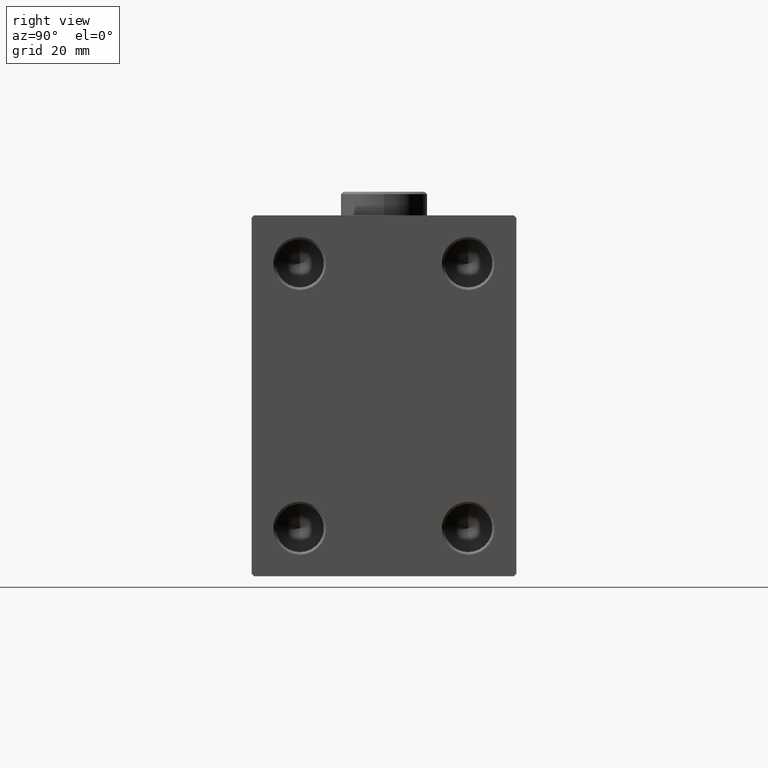
[diagram: clean part render]
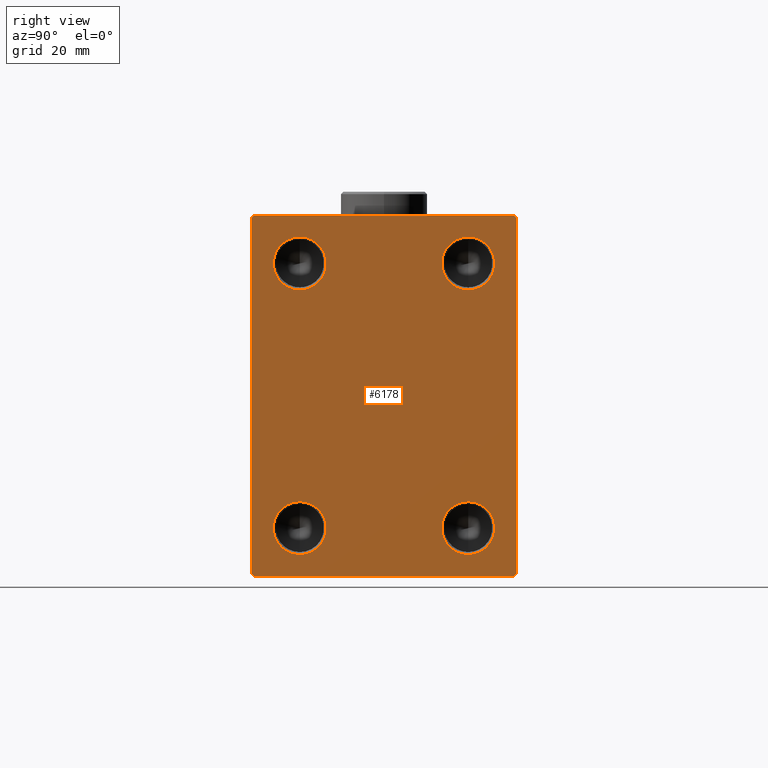
[diagram: same view with one face highlighted and labeled with its STEP entity id]
A machine part, right view. The second image highlights one B-rep face of the part: STEP entity #6178.
In plain terms, the highlighted planar face has unit normal (1, 0, 0).
Its self-contained STEP definition (entity closure, byte-faithful):
#233 = DIRECTION ( 'NONE',  ( 0.000000000000000000, 0.000000000000000000, -1.000000000000000000 ) ) ;
#428 = CARTESIAN_POINT ( 'NONE',  ( 105.0000000000000000, 27.00000000000003197, -37.50000000000000000 ) ) ;
#951 = LINE ( 'NONE', #39427, #1923 ) ;
#1006 = CARTESIAN_POINT ( 'NONE',  ( 105.0000000000000000, -27.49999999999999645, -37.00000000000000000 ) ) ;
#1106 = CARTESIAN_POINT ( 'NONE',  ( 105.0000000000000000, 17.50000000000000000, -33.00000000000000000 ) ) ;
#1469 = AXIS2_PLACEMENT_3D ( 'NONE', #6687, #20769, #233 ) ;
#1743 = DIRECTION ( 'NONE',  ( 1.000000000000000000, 0.000000000000000000, 0.000000000000000000 ) ) ;
#1864 = VECTOR ( 'NONE', #29191, 1000.000000000000114 ) ;
#1923 = VECTOR ( 'NONE', #29295, 1000.000000000000000 ) ;
#2299 = ORIENTED_EDGE ( 'NONE', *, *, #17758, .F. ) ;
#2366 = CIRCLE ( 'NONE', #7549, 5.500000000000007994 ) ;
#2632 = CARTESIAN_POINT ( 'NONE',  ( 105.0000000000000000, 27.50000000000000355, -37.00000000000002842 ) ) ;
#3015 = EDGE_LOOP ( 'NONE', ( #12712, #26159 ) ) ;
#3556 = DIRECTION ( 'NONE',  ( 1.000000000000000000, -0.000000000000000000, -0.000000000000000000 ) ) ;
#4507 = EDGE_CURVE ( 'NONE', #5526, #22441, #30795, .T. ) ;
#4709 = CARTESIAN_POINT ( 'NONE',  ( 105.0000000000000000, 17.50000000000000000, -27.49999999999999645 ) ) ;
#5438 = EDGE_CURVE ( 'NONE', #16872, #19454, #13195, .T. ) ;
#5497 = VERTEX_POINT ( 'NONE', #38989 ) ;
#5526 = VERTEX_POINT ( 'NONE', #29074 ) ;
#5912 = DIRECTION ( 'NONE',  ( 0.000000000000000000, 0.000000000000000000, -1.000000000000000000 ) ) ;
#6178 = ADVANCED_FACE ( 'NONE', ( #22054, #26408, #8211, #43232, #43472 ), #16031, .T. ) ;
#6384 = CARTESIAN_POINT ( 'NONE',  ( 105.0000000000000000, 27.49999999999999645, 37.00000000000001421 ) ) ;
#6560 = CARTESIAN_POINT ( 'NONE',  ( 105.0000000000000000, 17.50000000000000000, 27.50000000000000000 ) ) ;
#6687 = CARTESIAN_POINT ( 'NONE',  ( 105.0000000000000000, -17.50000000000000000, -27.49999999999999645 ) ) ;
#7513 = VERTEX_POINT ( 'NONE', #30819 ) ;
#7544 = CARTESIAN_POINT ( 'NONE',  ( 105.0000000000000000, -17.50000000000000000, -21.99999999999998934 ) ) ;
#7549 = AXIS2_PLACEMENT_3D ( 'NONE', #16990, #41155, #5912 ) ;
#7971 = DIRECTION ( 'NONE',  ( 0.000000000000000000, 1.000000000000000000, 0.000000000000000000 ) ) ;
#8211 = FACE_BOUND ( 'NONE', #14142, .T. ) ;
#8315 = CARTESIAN_POINT ( 'NONE',  ( 105.0000000000000000, -32.24999999999999289, -32.24999999999999289 ) ) ;
#8327 = CARTESIAN_POINT ( 'NONE',  ( 105.0000000000000000, -17.50000000000000000, -33.00000000000000000 ) ) ;
#8840 = CARTESIAN_POINT ( 'NONE',  ( 105.0000000000000000, 27.50000000000000355, -37.50000000000000000 ) ) ;
#8942 = DIRECTION ( 'NONE',  ( 1.000000000000000000, -0.000000000000000000, -0.000000000000000000 ) ) ;
#9758 = VERTEX_POINT ( 'NONE', #6384 ) ;
#9929 = VERTEX_POINT ( 'NONE', #34391 ) ;
#10473 = DIRECTION ( 'NONE',  ( 0.000000000000000000, 0.000000000000000000, -1.000000000000000000 ) ) ;
#10508 = EDGE_CURVE ( 'NONE', #31824, #41839, #25140, .T. ) ;
#11880 = CARTESIAN_POINT ( 'NONE',  ( 105.0000000000000000, 17.50000000000000000, 21.99999999999999289 ) ) ;
#11900 = CARTESIAN_POINT ( 'NONE',  ( 105.0000000000000000, 0.000000000000000000, 0.000000000000000000 ) ) ;
#12030 = CARTESIAN_POINT ( 'NONE',  ( 105.0000000000000000, -17.50000000000000000, 27.50000000000000000 ) ) ;
#12712 = ORIENTED_EDGE ( 'NONE', *, *, #35226, .F. ) ;
#12987 = ORIENTED_EDGE ( 'NONE', *, *, #45395, .T. ) ;
#13195 = LINE ( 'NONE', #41990, #26424 ) ;
#13522 = ORIENTED_EDGE ( 'NONE', *, *, #18465, .F. ) ;
#13895 = DIRECTION ( 'NONE',  ( 1.000000000000000000, -0.000000000000000000, -0.000000000000000000 ) ) ;
#14062 = AXIS2_PLACEMENT_3D ( 'NONE', #6560, #3556, #20644 ) ;
#14142 = EDGE_LOOP ( 'NONE', ( #26367, #14317 ) ) ;
#14317 = ORIENTED_EDGE ( 'NONE', *, *, #40755, .F. ) ;
#14326 = CARTESIAN_POINT ( 'NONE',  ( 105.0000000000000000, 27.49999999999999645, 37.50000000000000000 ) ) ;
#16031 = PLANE ( 'NONE',  #20558 ) ;
#16672 = ORIENTED_EDGE ( 'NONE', *, *, #5438, .T. ) ;
#16872 = VERTEX_POINT ( 'NONE', #428 ) ;
#16990 = CARTESIAN_POINT ( 'NONE',  ( 105.0000000000000000, 17.50000000000000000, 27.50000000000000000 ) ) ;
#17596 = AXIS2_PLACEMENT_3D ( 'NONE', #45045, #31665, #10473 ) ;
#17683 = CIRCLE ( 'NONE', #1469, 5.500000000000005329 ) ;
#17758 = EDGE_CURVE ( 'NONE', #37654, #29569, #39191, .T. ) ;
#18463 = LINE ( 'NONE', #14326, #19287 ) ;
#18465 = EDGE_CURVE ( 'NONE', #37942, #5497, #2366, .T. ) ;
#19287 = VECTOR ( 'NONE', #45425, 1000.000000000000000 ) ;
#19454 = VERTEX_POINT ( 'NONE', #2632 ) ;
#19631 = EDGE_LOOP ( 'NONE', ( #12987, #40179, #25145, #26548, #34836, #16672, #36153, #27584 ) ) ;
#19809 = AXIS2_PLACEMENT_3D ( 'NONE', #12030, #26090, #40133 ) ;
#20337 = ORIENTED_EDGE ( 'NONE', *, *, #25196, .F. ) ;
#20441 = VERTEX_POINT ( 'NONE', #39195 ) ;
#20505 = DIRECTION ( 'NONE',  ( 0.000000000000000000, -0.7071067811865474617, -0.7071067811865474617 ) ) ;
#20558 = AXIS2_PLACEMENT_3D ( 'NONE', #11900, #1743, #25964 ) ;
#20644 = DIRECTION ( 'NONE',  ( 0.000000000000000000, 0.000000000000000000, -1.000000000000000000 ) ) ;
#20769 = DIRECTION ( 'NONE',  ( 1.000000000000000000, -0.000000000000000000, -0.000000000000000000 ) ) ;
#20790 = EDGE_LOOP ( 'NONE', ( #45021, #13522 ) ) ;
#21386 = LINE ( 'NONE', #39540, #24791 ) ;
#21462 = AXIS2_PLACEMENT_3D ( 'NONE', #40508, #8942, #30588 ) ;
#21826 = LINE ( 'NONE', #32634, #1864 ) ;
#22051 = CIRCLE ( 'NONE', #19809, 5.500000000000007994 ) ;
#22054 = FACE_BOUND ( 'NONE', #20790, .T. ) ;
#22441 = VERTEX_POINT ( 'NONE', #31381 ) ;
#22517 = AXIS2_PLACEMENT_3D ( 'NONE', #45458, #13895, #27958 ) ;
#22569 = EDGE_CURVE ( 'NONE', #9929, #31035, #951, .T. ) ;
#22695 = DIRECTION ( 'NONE',  ( 0.000000000000000000, 0.000000000000000000, -1.000000000000000000 ) ) ;
#24029 = DIRECTION ( 'NONE',  ( -0.000000000000000000, 0.7071067811865474617, 0.7071067811865474617 ) ) ;
#24056 = EDGE_LOOP ( 'NONE', ( #20337, #2299 ) ) ;
#24710 = EDGE_CURVE ( 'NONE', #9758, #7513, #21826, .T. ) ;
#24791 = VECTOR ( 'NONE', #7971, 1000.000000000000000 ) ;
#25140 = CIRCLE ( 'NONE', #21462, 5.500000000000005329 ) ;
#25145 = ORIENTED_EDGE ( 'NONE', *, *, #22569, .T. ) ;
#25196 = EDGE_CURVE ( 'NONE', #29569, #37654, #40159, .T. ) ;
#25964 = DIRECTION ( 'NONE',  ( 0.000000000000000000, 0.000000000000000000, -1.000000000000000000 ) ) ;
#26067 = DIRECTION ( 'NONE',  ( -0.000000000000000000, 0.7071067811865474617, -0.7071067811865474617 ) ) ;
#26090 = DIRECTION ( 'NONE',  ( 1.000000000000000000, -0.000000000000000000, -0.000000000000000000 ) ) ;
#26159 = ORIENTED_EDGE ( 'NONE', *, *, #4507, .F. ) ;
#26362 = DIRECTION ( 'NONE',  ( 0.000000000000000000, -9.251858538542971581E-17, 1.000000000000000000 ) ) ;
#26367 = ORIENTED_EDGE ( 'NONE', *, *, #10508, .F. ) ;
#26408 = FACE_BOUND ( 'NONE', #3015, .T. ) ;
#26424 = VECTOR ( 'NONE', #24029, 1000.000000000000114 ) ;
#26548 = ORIENTED_EDGE ( 'NONE', *, *, #39729, .T. ) ;
#27584 = ORIENTED_EDGE ( 'NONE', *, *, #24710, .T. ) ;
#27609 = EDGE_CURVE ( 'NONE', #29366, #16872, #21386, .T. ) ;
#27634 = CARTESIAN_POINT ( 'NONE',  ( 105.0000000000000000, -32.24999999999999289, 32.24999999999999289 ) ) ;
#27958 = DIRECTION ( 'NONE',  ( 0.000000000000000000, 0.000000000000000000, -1.000000000000000000 ) ) ;
#28986 = CARTESIAN_POINT ( 'NONE',  ( 105.0000000000000000, -26.99999999999999645, -37.50000000000000000 ) ) ;
#29074 = CARTESIAN_POINT ( 'NONE',  ( 105.0000000000000000, -17.50000000000000000, 21.99999999999999289 ) ) ;
#29191 = DIRECTION ( 'NONE',  ( -0.000000000000000000, -0.7071067811865474617, 0.7071067811865474617 ) ) ;
#29295 = DIRECTION ( 'NONE',  ( 0.000000000000000000, 0.000000000000000000, -1.000000000000000000 ) ) ;
#29366 = VERTEX_POINT ( 'NONE', #28986 ) ;
#29569 = VERTEX_POINT ( 'NONE', #31929 ) ;
#30588 = DIRECTION ( 'NONE',  ( 0.000000000000000000, 0.000000000000000000, -1.000000000000000000 ) ) ;
#30795 = CIRCLE ( 'NONE', #17596, 5.500000000000007994 ) ;
#30819 = CARTESIAN_POINT ( 'NONE',  ( 105.0000000000000000, 27.00000000000001066, 37.50000000000000000 ) ) ;
#31035 = VERTEX_POINT ( 'NONE', #1006 ) ;
#31381 = CARTESIAN_POINT ( 'NONE',  ( 105.0000000000000000, -17.50000000000000000, 33.00000000000001421 ) ) ;
#31665 = DIRECTION ( 'NONE',  ( 1.000000000000000000, -0.000000000000000000, -0.000000000000000000 ) ) ;
#31824 = VERTEX_POINT ( 'NONE', #7544 ) ;
#31929 = CARTESIAN_POINT ( 'NONE',  ( 105.0000000000000000, 17.50000000000000000, -21.99999999999998934 ) ) ;
#32294 = VECTOR ( 'NONE', #26362, 1000.000000000000000 ) ;
#32634 = CARTESIAN_POINT ( 'NONE',  ( 105.0000000000000000, 32.25000000000000000, 32.25000000000000000 ) ) ;
#33213 = EDGE_CURVE ( 'NONE', #19454, #9758, #43419, .T. ) ;
#33286 = DIRECTION ( 'NONE',  ( 1.000000000000000000, -0.000000000000000000, -0.000000000000000000 ) ) ;
#33296 = AXIS2_PLACEMENT_3D ( 'NONE', #4709, #33286, #22695 ) ;
#34391 = CARTESIAN_POINT ( 'NONE',  ( 105.0000000000000000, -27.49999999999999645, 36.99999999999998579 ) ) ;
#34836 = ORIENTED_EDGE ( 'NONE', *, *, #27609, .T. ) ;
#35226 = EDGE_CURVE ( 'NONE', #22441, #5526, #22051, .T. ) ;
#36153 = ORIENTED_EDGE ( 'NONE', *, *, #33213, .T. ) ;
#36442 = EDGE_CURVE ( 'NONE', #20441, #9929, #37992, .T. ) ;
#37654 = VERTEX_POINT ( 'NONE', #1106 ) ;
#37942 = VERTEX_POINT ( 'NONE', #11880 ) ;
#37992 = LINE ( 'NONE', #27634, #41169 ) ;
#38989 = CARTESIAN_POINT ( 'NONE',  ( 105.0000000000000000, 17.50000000000000000, 33.00000000000001421 ) ) ;
#39191 = CIRCLE ( 'NONE', #33296, 5.500000000000005329 ) ;
#39195 = CARTESIAN_POINT ( 'NONE',  ( 105.0000000000000000, -26.99999999999999645, 37.49999999999998579 ) ) ;
#39427 = CARTESIAN_POINT ( 'NONE',  ( 105.0000000000000000, -27.49999999999999645, 37.49999999999998579 ) ) ;
#39540 = CARTESIAN_POINT ( 'NONE',  ( 105.0000000000000000, -27.49999999999999645, -37.50000000000000000 ) ) ;
#39653 = LINE ( 'NONE', #8315, #45596 ) ;
#39729 = EDGE_CURVE ( 'NONE', #31035, #29366, #39653, .T. ) ;
#40133 = DIRECTION ( 'NONE',  ( 0.000000000000000000, 0.000000000000000000, -1.000000000000000000 ) ) ;
#40159 = CIRCLE ( 'NONE', #22517, 5.500000000000005329 ) ;
#40179 = ORIENTED_EDGE ( 'NONE', *, *, #36442, .T. ) ;
#40508 = CARTESIAN_POINT ( 'NONE',  ( 105.0000000000000000, -17.50000000000000000, -27.49999999999999645 ) ) ;
#40755 = EDGE_CURVE ( 'NONE', #41839, #31824, #17683, .T. ) ;
#41155 = DIRECTION ( 'NONE',  ( 1.000000000000000000, -0.000000000000000000, -0.000000000000000000 ) ) ;
#41169 = VECTOR ( 'NONE', #20505, 1000.000000000000114 ) ;
#41839 = VERTEX_POINT ( 'NONE', #8327 ) ;
#41990 = CARTESIAN_POINT ( 'NONE',  ( 105.0000000000000000, 32.25000000000001421, -32.25000000000001421 ) ) ;
#42896 = EDGE_CURVE ( 'NONE', #5497, #37942, #44205, .T. ) ;
#43232 = FACE_BOUND ( 'NONE', #24056, .T. ) ;
#43419 = LINE ( 'NONE', #8840, #32294 ) ;
#43472 = FACE_OUTER_BOUND ( 'NONE', #19631, .T. ) ;
#44205 = CIRCLE ( 'NONE', #14062, 5.500000000000007994 ) ;
#45021 = ORIENTED_EDGE ( 'NONE', *, *, #42896, .F. ) ;
#45045 = CARTESIAN_POINT ( 'NONE',  ( 105.0000000000000000, -17.50000000000000000, 27.50000000000000000 ) ) ;
#45395 = EDGE_CURVE ( 'NONE', #7513, #20441, #18463, .T. ) ;
#45425 = DIRECTION ( 'NONE',  ( 0.000000000000000000, -1.000000000000000000, -2.523234146875355998E-16 ) ) ;
#45458 = CARTESIAN_POINT ( 'NONE',  ( 105.0000000000000000, 17.50000000000000000, -27.49999999999999645 ) ) ;
#45596 = VECTOR ( 'NONE', #26067, 1000.000000000000114 ) ;